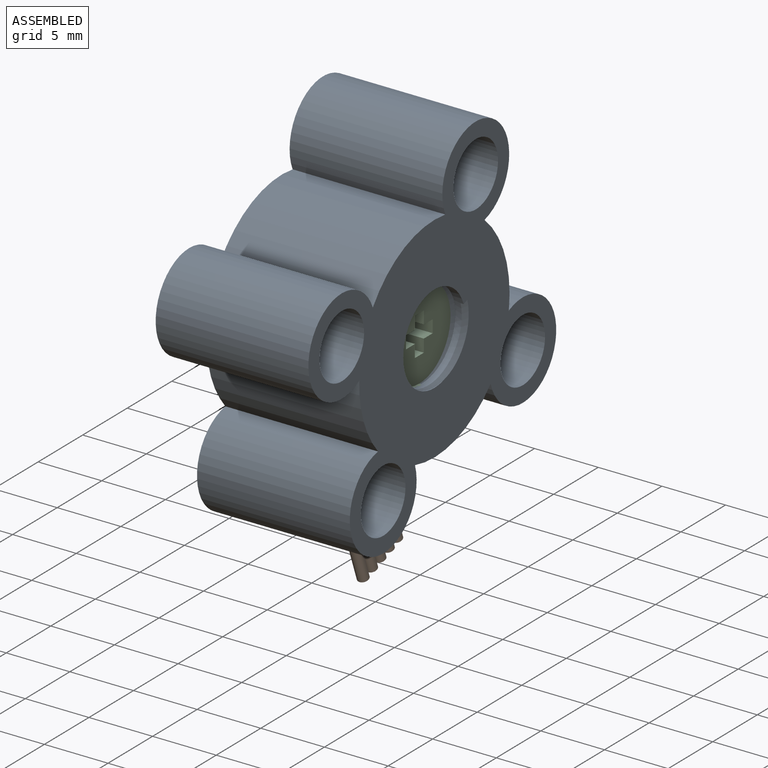
[diagram: assembled view]
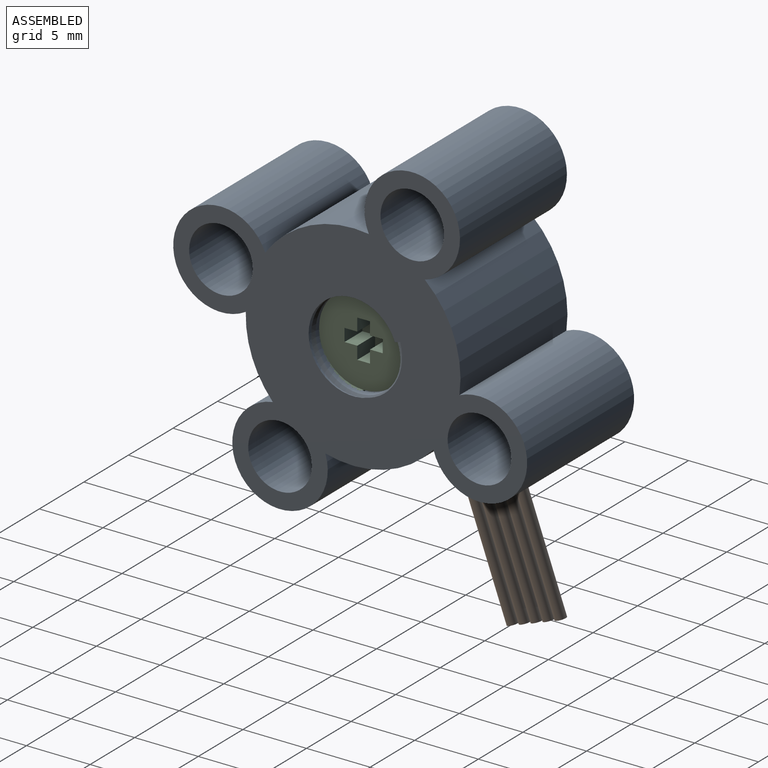
[diagram: assembled view, second angle]
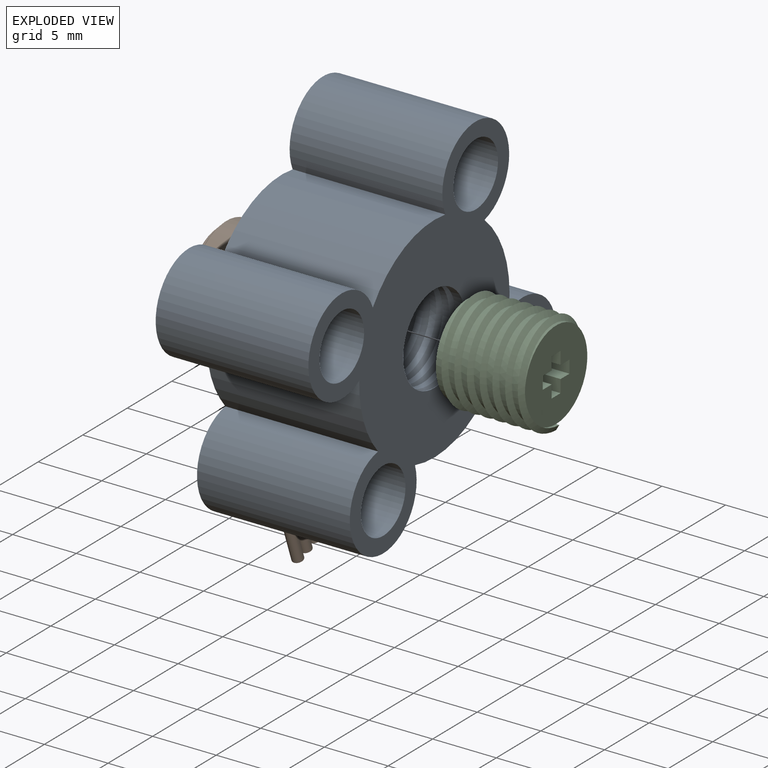
[diagram: exploded view]
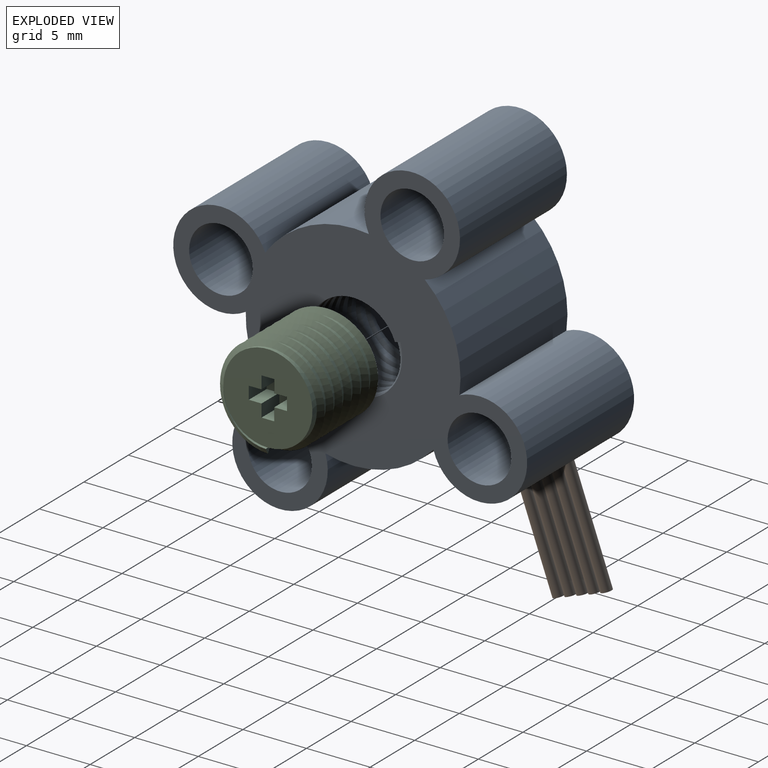
[diagram: exploded view, second angle]
ASSEMBLY  parts=3 mates=4
PART A: 26 faces, bbox 12.5x24x23.1 mm
  f0: cylinder r=3.75mm len=12mm, axis (1,0,0), area 219.3mm2, adj f1,f2,f4,f14
  f1: plane 23.83x22.93mm, normal (-1,0,0), area 266.8mm2, adj f0,f3,f4,f5,f6,f7,f8,f9
  f2: plane 24.03x23.13mm, normal (1,0,0), area 265.5mm2, adj f0,f3,f4,f5,f6,f7,f8,f9
  f3: cylinder r=2.5mm len=12mm, axis (1,0,0), area 188.5mm2, adj f1,f2
  f4: cylinder r=8.44mm len=12mm, axis (-1,0,0), area 111.9mm2, adj f0,f1,f2,f5
  f5: cylinder r=3.75mm len=12mm, axis (1,0,0), area 219.3mm2, adj f1,f2,f4,f7
  f6: cylinder r=2.5mm len=12mm, axis (1,0,0), area 188.5mm2, adj f1,f2
  f7: cylinder r=8.44mm len=12mm, axis (-1,0,0), area 99.4mm2, adj f1,f2,f5,f8
  f8: cylinder r=3.75mm len=12mm, axis (1,0,0), area 219.3mm2, adj f1,f2,f7,f10
  f9: cylinder r=2.5mm len=12mm, axis (1,0,0), area 188.5mm2, adj f1,f2
  f10: cylinder r=8.44mm len=12mm, axis (-1,0,0), area 78.5mm2, adj f1,f2,f8,f11,f13,f17,f18,f20
  f11: cylinder r=3.75mm len=12mm, axis (1,0,0), area 219.3mm2, adj f1,f2,f10,f14
  f12: cylinder r=2.5mm len=12mm, axis (1,0,0), area 188.5mm2, adj f1,f2
  f13: plane 12.64x8.63mm, normal (-1,0,0), area 50.7mm2, adj f10,f15,f18,f19,f20,f21,f23,f24
  f14: cylinder r=8.44mm len=12mm, axis (-1,0,0), area 76.3mm2, adj f0,f1,f2,f11
  f15: cylinder r=4mm len=8mm, axis (-1,0,0), area 57.7mm2, adj f13,f17,f19,f20
  f16: cylinder r=3.5mm len=7mm, axis (-1,0,0), area 22mm2, adj f1,f17
  f17: plane 12.44x8.42mm, normal (1,0,0), area 51.9mm2, adj f10,f15,f16,f18,f19,f20
  f18: plane 7.18x4mm, normal (0,1,0), area 28.7mm2, adj f10,f13,f17,f19
  f19: plane 4x0.42mm, normal (0,0,-1), area 1.7mm2, adj f13,f15,f17,f18
  f20: plane 5.85x4mm, normal (0,-1,0), area 23.4mm2, adj f10,f13,f15,f17
  f21: cylinder r=3.5mm len=7mm, axis (1,0,0), area 80.1mm2, adj f2,f13,f22,f23,f24,f25
  f22: plane 0.43x0.25mm, normal (0,0,-1), area 0.1mm2, adj f2,f21,f24
  f23: plane 0.43x0.25mm, normal (0,0,1), area 0.1mm2, adj f13,f21,f25
  f24: bspline ~9.08x7.87mm, area 80.3mm2, adj f13,f21,f22,f25
  f25: bspline ~9.08x7.87mm, area 80.4mm2, adj f2,f21,f23,f24
PART B: 36 faces, bbox 8.1x3.2x26.6 mm
  f0: plane 0.01x0.01mm, normal (0,0,1), area 0mm2, adj f3,f4,f21,f35
  f1: plane 0.01x0.01mm, normal (0,0,1), area 0mm2, adj f3,f5,f20,f35
  f2: cylinder r=4mm len=8mm, axis (0,-1,0), area 46.9mm2, adj f3,f6,f7,f8,f9,f20,f21,f23
  f3: plane 7.12x7mm, normal (0,1,0), area 7.6mm2, adj f0,f1,f2,f4,f5,f7,f8,f10
  f4: cylinder r=3.5mm len=0.79mm, axis (0,1,0), area 0mm2, adj f0,f3,f13,f35
  f5: cylinder r=3.5mm len=0.79mm, axis (0,1,0), area 0mm2, adj f1,f3,f14,f35
  f6: plane 3.87x0.5mm, normal (0,1,0), area 1.3mm2, adj f2,f7
  f7: plane 3.87x1mm, normal (-1,0,0), area 3.9mm2, adj f2,f3,f6
  f8: plane 3.87x1mm, normal (1,0,0), area 3.9mm2, adj f2,f3,f9
  f9: plane 3.87x0.5mm, normal (0,1,0), area 1.3mm2, adj f2,f8
  f10: plane 2.38x0.01mm, normal (-1,0,0), area 0mm2, adj f3,f12,f13,f35
  f11: plane 2.38x0.01mm, normal (1,0,0), area 0mm2, adj f3,f14,f15,f35
  f12: cylinder r=1mm len=0.48mm, axis (0,1,0), area 0mm2, adj f3,f10,f16,f35
  f13: cylinder r=1mm len=0.48mm, axis (0,1,0), area 0mm2, adj f3,f4,f10,f35
  f14: cylinder r=1mm len=0.48mm, axis (0,1,0), area 0mm2, adj f3,f5,f11,f35
  f15: cylinder r=1mm len=0.48mm, axis (0,1,0), area 0mm2, adj f3,f11,f16,f35
  f16: cylinder r=3.5mm len=6.16mm, axis (0,1,0), area 0.1mm2, adj f3,f12,f15,f35
  f17: plane 7.8x7.8mm, normal (0,-1,0), area 9.3mm2, adj f18,f23
  f18: cylinder r=3.5mm len=7mm, axis (0,-1,0), area 8.8mm2, adj f17,f22
  f19: plane 6.8x6.8mm, normal (0,-1,0), area 36.3mm2, adj f22
  f20: plane 0.82x0.56mm, normal (1,0,0), area 0.1mm2, adj f1,f2,f3,f34,f35
  f21: plane 0.82x0.56mm, normal (-1,0,0), area 0.1mm2, adj f0,f2,f3,f34,f35
  f22: cone r=3.4mm half-angle=45deg, axis (0,1,0), area 3.1mm2, adj f18,f19
  f23: cone r=4mm half-angle=45deg, axis (0,1,0), area 3.5mm2, adj f2,f17
  f24: plane 0.85x0.85mm, normal (0,0,1), area 0.6mm2, adj f25
  f25: cylinder r=0.42mm len=19.28mm, axis (0,0,-1), area 50.8mm2, adj f2,f24
  f26: plane 0.85x0.85mm, normal (0,0,1), area 0.6mm2, adj f27
  f27: cylinder r=0.42mm len=18.5mm, axis (0,0,-1), area 49.4mm2, adj f2,f26
  f28: plane 0.85x0.85mm, normal (0,0,1), area 0.6mm2, adj f29
  f29: cylinder r=0.42mm len=18.48mm, axis (0,0,-1), area 49.3mm2, adj f2,f28
  f30: plane 0.85x0.85mm, normal (0,0,1), area 0.6mm2, adj f31
  f31: cylinder r=0.42mm len=18.72mm, axis (0,0,-1), area 50mm2, adj f2,f30
  f32: plane 0.85x0.85mm, normal (0,0,1), area 0.6mm2, adj f33
  f33: cylinder r=0.42mm len=19.28mm, axis (0,0,-1), area 50.8mm2, adj f2,f32
  f34: torus R=3.6mm, axis (0,1,0), area 3.5mm2, adj f2,f20,f21,f35
  f35: bspline ~7.3x6.59mm, area 37.9mm2, adj f0,f1,f4,f5,f10,f11,f12,f13
PART C: 22 faces, bbox 7.5x7.9x9.1 mm
  f0: cylinder r=3.5mm len=7mm, axis (-1,0,0), area 80.1mm2, adj f1,f2,f4,f5,f7,f8
  f1: plane 7x7mm, normal (1,0,0), area 33.5mm2, adj f0,f3,f9,f10,f11,f12,f13,f14
  f2: plane 7x7mm, normal (-1,0,0), area 38.5mm2, adj f0,f6
  f3: cylinder r=3.5mm len=3.5mm, axis (-1,0,0), area 0.7mm2, adj f1,f4,f8
  f4: plane 0.5x0.43mm, normal (0,0,-1), area 0.1mm2, adj f0,f3,f7,f8
  f5: plane 0.5x0.43mm, normal (0,0,1), area 0.1mm2, adj f0,f6,f7,f8
  f6: cylinder r=3.5mm len=3.5mm, axis (-1,0,0), area 0.7mm2, adj f2,f5,f7
  f7: bspline ~9.08x7.87mm, area 81.7mm2, adj f0,f4,f5,f6,f8
  f8: bspline ~9.08x7.87mm, area 81.9mm2, adj f0,f3,f4,f5,f7
  f9: plane 2x1mm, normal (0,1,0), area 2mm2, adj f1,f10,f20,f21
  f10: plane 2x1mm, normal (0,0,-1), area 2mm2, adj f1,f9,f11,f21
  f11: plane 2x1mm, normal (0,1,0), area 2mm2, adj f1,f10,f12,f21
  f12: plane 2x1mm, normal (0,0,1), area 2mm2, adj f1,f11,f13,f21
  f13: plane 2x1mm, normal (0,1,0), area 2mm2, adj f1,f12,f14,f21
  f14: plane 2x1mm, normal (0,0,1), area 2mm2, adj f1,f13,f15,f21
  f15: plane 2x1mm, normal (0,-1,0), area 2mm2, adj f1,f14,f16,f21
  f16: plane 2x1mm, normal (0,0,1), area 2mm2, adj f1,f15,f17,f21
  f17: plane 2x1mm, normal (0,-1,0), area 2mm2, adj f1,f16,f18,f21
  f18: plane 2x1mm, normal (0,0,-1), area 2mm2, adj f1,f17,f19,f21
  f19: plane 2x1mm, normal (0,-1,0), area 2mm2, adj f1,f18,f20,f21
  f20: plane 2x1mm, normal (0,0,-1), area 2mm2, adj f1,f9,f19,f21
  f21: plane 3x3mm, normal (1,0,0), area 5mm2, adj f9,f10,f11,f12,f13,f14,f15,f16
PLACE A rot(axis=(1,0,0),20deg) t=(-2.03,25.24,12.26)mm
PLACE B rot(axis=(-0.7,-0.7,-0.12),165.9deg) t=(-13.83,25.24,12.26)mm
PLACE C rot(axis=(1,0,0),90deg) t=(-35.21,25.24,12.26)mm
MATE cylindrical C.f0 <-> A.f21  axis (-1,0,0) through (-10.21,25.24,12.26)mm
MATE parallel B.f2 <-> A.f17  axis (-1,0,0) through (-13.33,25.24,12.26)mm
MATE revolute A.f4 <-> B.f2  axis (-1,0,0) through (-13.53,25.24,12.26)mm
MATE parallel B.f7 <-> A.f18  axis (0,-0.94,-0.34) through (-11.33,21.95,11.07)mm
